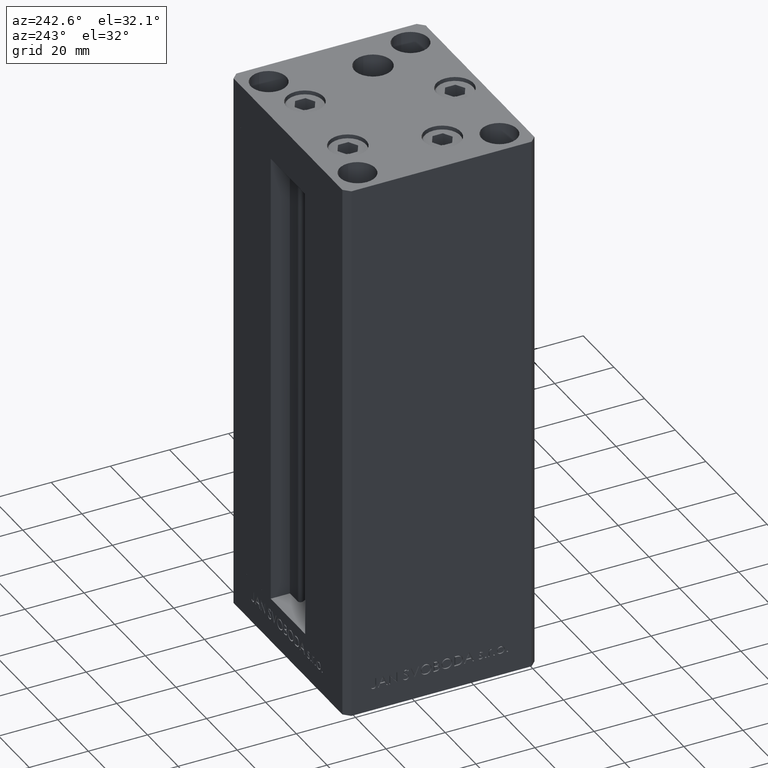
[diagram: clean part render]
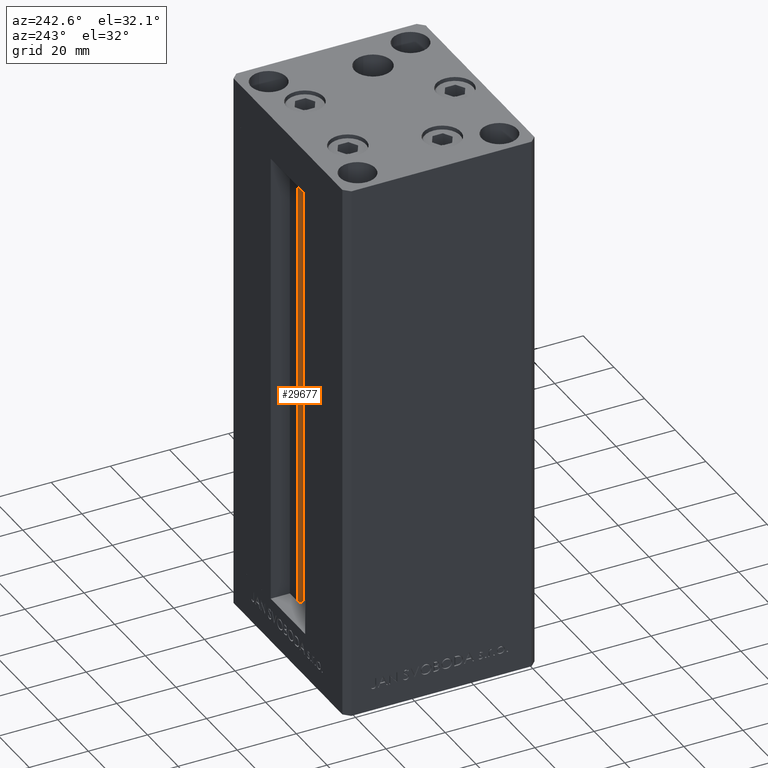
[diagram: same view with one face highlighted and labeled with its STEP entity id]
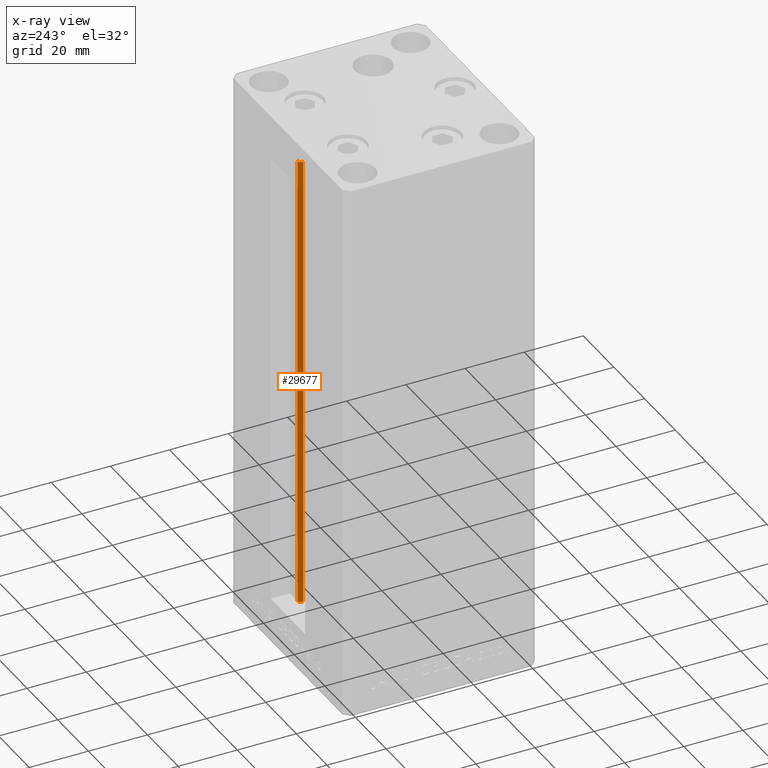
[diagram: x-ray of the same camera — body ghosted, the highlighted face saturated]
A machine part, auxiliary view. The second image highlights one B-rep face of the part: STEP entity #29677.
The next image is the same camera in x-ray: the body ghosted, the highlighted face saturated — about 0% of this face is hidden behind the body in this view.
In plain terms, the highlighted cylindrical surface (edge-blend (fillet) strip) has radius 0.9333 mm, axis along (0, 0, 1).
Its self-contained STEP definition (entity closure, byte-faithful):
#104 = CARTESIAN_POINT ( 'NONE',  ( 5.375042956467947164, 24.59999999999899245, 0.000000000000000000 ) ) ;
#786 = EDGE_CURVE ( 'NONE', #48813, #24367, #36824, .T. ) ;
#884 = DIRECTION ( 'NONE',  ( 1.000000000000000000, 0.000000000000000000, 0.000000000000000000 ) ) ;
#2931 = DIRECTION ( 'NONE',  ( -0.000000000000000000, -0.000000000000000000, 1.000000000000000000 ) ) ;
#3577 = FACE_OUTER_BOUND ( 'NONE', #39710, .T. ) ;
#3823 = CARTESIAN_POINT ( 'NONE',  ( 6.183333333334001480, 25.06666666666599141, 0.000000000000000000 ) ) ;
#4283 = CARTESIAN_POINT ( 'NONE',  ( 5.375042956467948052, 24.59999999999899245, 156.0000000000000000 ) ) ;
#6222 = VECTOR ( 'NONE', #23617, 1000.000000000000000 ) ;
#7821 = AXIS2_PLACEMENT_3D ( 'NONE', #12010, #28256, #884 ) ;
#9405 = CIRCLE ( 'NONE', #7821, 0.9333333333340008142 ) ;
#10514 = ORIENTED_EDGE ( 'NONE', *, *, #38807, .T. ) ;
#11013 = ORIENTED_EDGE ( 'NONE', *, *, #18314, .F. ) ;
#11476 = DIRECTION ( 'NONE',  ( -0.000000000000000000, -0.000000000000000000, -1.000000000000000000 ) ) ;
#12010 = CARTESIAN_POINT ( 'NONE',  ( 6.183333333334001480, 25.06666666666599141, 156.0000000000000000 ) ) ;
#12176 = CARTESIAN_POINT ( 'NONE',  ( 6.183333333334001480, 25.99999999999999289, 156.0000000000000000 ) ) ;
#12487 = ORIENTED_EDGE ( 'NONE', *, *, #786, .F. ) ;
#18314 = EDGE_CURVE ( 'NONE', #32128, #48813, #34121, .T. ) ;
#18902 = CARTESIAN_POINT ( 'NONE',  ( 6.183333333334001480, 25.06666666666599141, 0.000000000000000000 ) ) ;
#21501 = AXIS2_PLACEMENT_3D ( 'NONE', #3823, #11476, #38207 ) ;
#22160 = VERTEX_POINT ( 'NONE', #4283 ) ;
#22380 = DIRECTION ( 'NONE',  ( 1.000000000000000000, 0.000000000000000000, 0.000000000000000000 ) ) ;
#22422 = CARTESIAN_POINT ( 'NONE',  ( 6.183333333334001480, 25.99999999999999289, 0.000000000000000000 ) ) ;
#23617 = DIRECTION ( 'NONE',  ( -0.000000000000000000, -0.000000000000000000, 1.000000000000000000 ) ) ;
#24367 = VERTEX_POINT ( 'NONE', #12176 ) ;
#27329 = LINE ( 'NONE', #45884, #6222 ) ;
#28256 = DIRECTION ( 'NONE',  ( 0.000000000000000000, 0.000000000000000000, -1.000000000000000000 ) ) ;
#29677 = ADVANCED_FACE ( 'NONE', ( #3577 ), #33507, .T. ) ;
#29741 = AXIS2_PLACEMENT_3D ( 'NONE', #18902, #48598, #22380 ) ;
#32120 = VECTOR ( 'NONE', #2931, 1000.000000000000000 ) ;
#32128 = VERTEX_POINT ( 'NONE', #104 ) ;
#33507 = CYLINDRICAL_SURFACE ( 'NONE', #29741, 0.9333333333340008142 ) ;
#33718 = ORIENTED_EDGE ( 'NONE', *, *, #39970, .T. ) ;
#34121 = CIRCLE ( 'NONE', #21501, 0.9333333333340008142 ) ;
#36824 = LINE ( 'NONE', #43506, #32120 ) ;
#38207 = DIRECTION ( 'NONE',  ( 1.000000000000000000, 0.000000000000000000, 0.000000000000000000 ) ) ;
#38807 = EDGE_CURVE ( 'NONE', #32128, #22160, #27329, .T. ) ;
#39710 = EDGE_LOOP ( 'NONE', ( #12487, #11013, #10514, #33718 ) ) ;
#39970 = EDGE_CURVE ( 'NONE', #22160, #24367, #9405, .T. ) ;
#43506 = CARTESIAN_POINT ( 'NONE',  ( 6.183333333334001480, 25.99999999999999289, 0.000000000000000000 ) ) ;
#45884 = CARTESIAN_POINT ( 'NONE',  ( 5.375042956467947164, 24.59999999999899245, 0.000000000000000000 ) ) ;
#48598 = DIRECTION ( 'NONE',  ( -0.000000000000000000, -0.000000000000000000, 1.000000000000000000 ) ) ;
#48813 = VERTEX_POINT ( 'NONE', #22422 ) ;